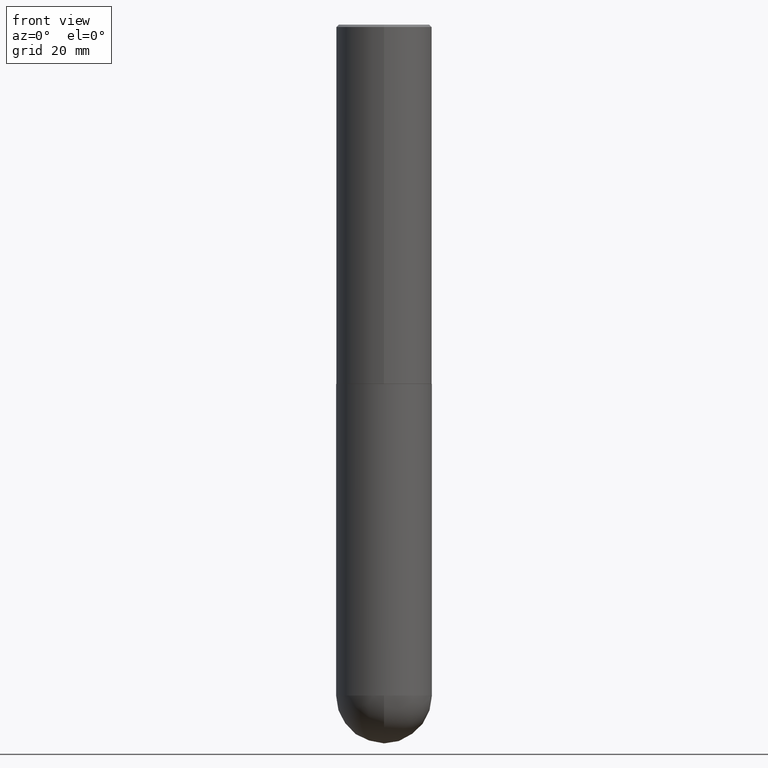
[diagram: clean part render]
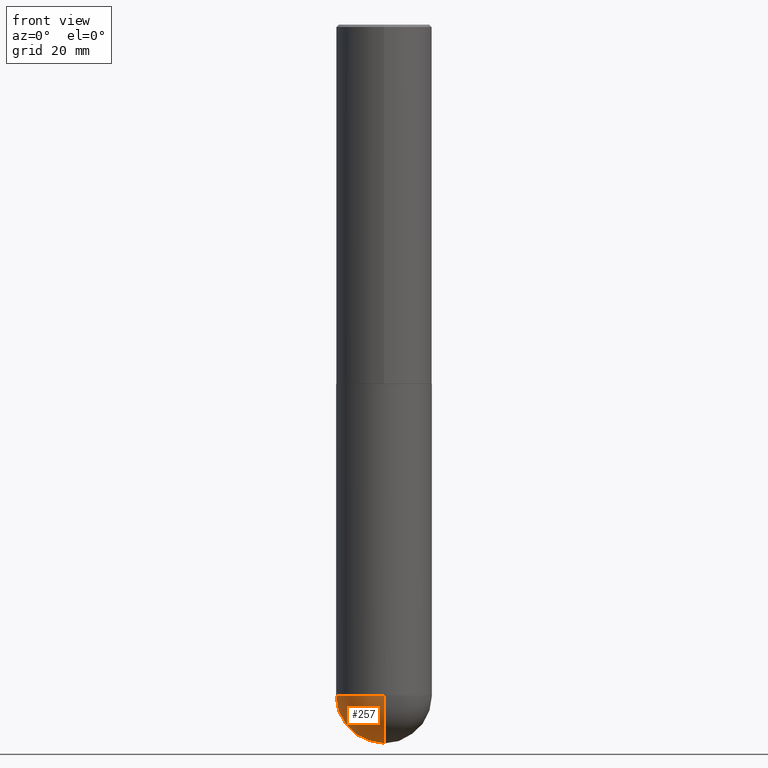
[diagram: same view with one face highlighted and labeled with its STEP entity id]
A machine part, front view. The second image highlights one B-rep face of the part: STEP entity #257.
In plain terms, the highlighted spherical surface has radius 10 mm.
Its self-contained STEP definition (entity closure, byte-faithful):
#6 = VERTEX_POINT ( 'NONE', #89 ) ;
#19 = AXIS2_PLACEMENT_3D ( 'NONE', #316, #358, #281 ) ;
#24 = VERTEX_POINT ( 'NONE', #210 ) ;
#48 = DIRECTION ( 'NONE',  ( 6.982962677686265922E-15, 1.000000000000000000, -2.775563112689116301E-15 ) ) ;
#49 = CIRCLE ( 'NONE', #265, 0.3937000000000001054 ) ;
#60 = ORIENTED_EDGE ( 'NONE', *, *, #332, .F. ) ;
#76 = FACE_OUTER_BOUND ( 'NONE', #262, .T. ) ;
#78 = DIRECTION ( 'NONE',  ( -1.000000000000000000, 6.982962677686265922E-15, -4.883557194083112340E-29 ) ) ;
#79 = CARTESIAN_POINT ( 'NONE',  ( 1.314781518801735134E-28, -1.971852921157570065E-14, -5.511800000000000033 ) ) ;
#80 = CIRCLE ( 'NONE', #237, 0.3937000000000001054 ) ;
#89 = CARTESIAN_POINT ( 'NONE',  ( 2.749192406205216928E-15, 0.3936999999999805655, -5.511800000000000921 ) ) ;
#95 = CARTESIAN_POINT ( 'NONE',  ( -0.3937000000000001054, -1.197941514563138553E-14, -5.511800000000000033 ) ) ;
#106 = DIRECTION ( 'NONE',  ( -1.000000000000000000, 7.105427357601001070E-15, -4.926315508542082329E-29 ) ) ;
#129 = AXIS2_PLACEMENT_3D ( 'NONE', #380, #78, #48 ) ;
#138 = EDGE_CURVE ( 'NONE', #181, #24, #279, .T. ) ;
#144 = SPHERICAL_SURFACE ( 'NONE', #129, 0.3937000000000001054 ) ;
#172 = CARTESIAN_POINT ( 'NONE',  ( 1.412743020541493694E-28, -2.106901824243703318E-14, -5.905499999999999972 ) ) ;
#181 = VERTEX_POINT ( 'NONE', #95 ) ;
#186 = ORIENTED_EDGE ( 'NONE', *, *, #138, .F. ) ;
#201 = DIRECTION ( 'NONE',  ( 6.982962677686265133E-15, 1.000000000000000000, 0.000000000000000000 ) ) ;
#210 = CARTESIAN_POINT ( 'NONE',  ( -2.797406750687381075E-15, -0.3937000000000196454, -5.511799999999999145 ) ) ;
#237 = AXIS2_PLACEMENT_3D ( 'NONE', #275, #410, #284 ) ;
#244 = CIRCLE ( 'NONE', #401, 0.3937000000000001054 ) ;
#257 = ADVANCED_FACE ( 'NONE', ( #76 ), #144, .T. ) ;
#262 = EDGE_LOOP ( 'NONE', ( #285, #327, #186, #60 ) ) ;
#265 = AXIS2_PLACEMENT_3D ( 'NONE', #79, #407, #201 ) ;
#275 = CARTESIAN_POINT ( 'NONE',  ( 1.347893496593123646E-28, -1.924434684343564878E-14, -5.511800000000000033 ) ) ;
#279 = CIRCLE ( 'NONE', #19, 0.3937000000000001054 ) ;
#281 = DIRECTION ( 'NONE',  ( 1.000000000000000000, -6.982962677686266711E-15, 0.000000000000000000 ) ) ;
#284 = DIRECTION ( 'NONE',  ( 1.000000000000000000, -6.982962677686266711E-15, 0.000000000000000000 ) ) ;
#285 = ORIENTED_EDGE ( 'NONE', *, *, #309, .F. ) ;
#302 = DIRECTION ( 'NONE',  ( -7.105427357601001070E-15, -1.000000000000000000, 0.000000000000000000 ) ) ;
#309 = EDGE_CURVE ( 'NONE', #363, #6, #49, .T. ) ;
#316 = CARTESIAN_POINT ( 'NONE',  ( 1.347893496593123646E-28, -1.924434684343564878E-14, -5.511800000000000033 ) ) ;
#327 = ORIENTED_EDGE ( 'NONE', *, *, #379, .T. ) ;
#332 = EDGE_CURVE ( 'NONE', #6, #181, #80, .T. ) ;
#358 = DIRECTION ( 'NONE',  ( -2.445468806185136597E-29, 3.491481338843145583E-15, 1.000000000000000000 ) ) ;
#363 = VERTEX_POINT ( 'NONE', #172 ) ;
#379 = EDGE_CURVE ( 'NONE', #363, #24, #244, .T. ) ;
#380 = CARTESIAN_POINT ( 'NONE',  ( 1.314781518801735134E-28, -1.971852921157570065E-14, -5.511800000000000033 ) ) ;
#401 = AXIS2_PLACEMENT_3D ( 'NONE', #403, #106, #302 ) ;
#403 = CARTESIAN_POINT ( 'NONE',  ( 1.314781518801735134E-28, -1.971852921157570065E-14, -5.511800000000000033 ) ) ;
#407 = DIRECTION ( 'NONE',  ( 1.000000000000000000, -6.982962677686265922E-15, 4.883557194083112340E-29 ) ) ;
#410 = DIRECTION ( 'NONE',  ( -2.445468806185136597E-29, 3.491481338843145583E-15, 1.000000000000000000 ) ) ;